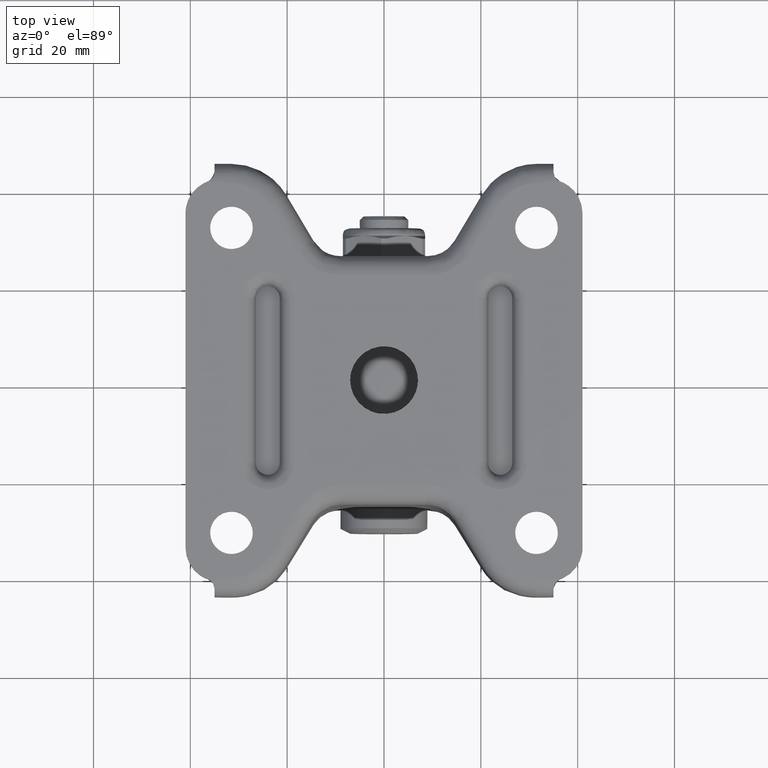
[diagram: clean part render]
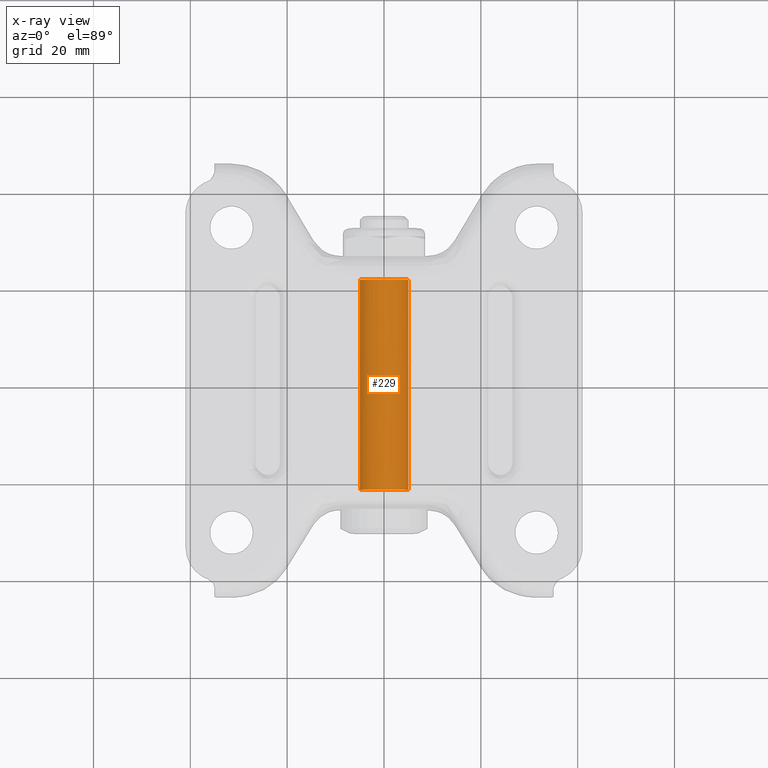
[diagram: x-ray — body ghosted, one internal face saturated and labeled with its STEP entity id]
A machine part, top view, then the same camera in x-ray: the body is ghosted and one INTERNAL B-rep face — a face not visible from any outside direction — is saturated and labeled: STEP entity #229.
In plain terms, the highlighted face is a freeform B-spline surface patch.
Its self-contained STEP definition (entity closure, byte-faithful):
#62=CARTESIAN_POINT('',(-4.961331069114298,21.699999999999999,-58.120640010506229));
#63=VERTEX_POINT('',#62);
#79=CARTESIAN_POINT('',(-4.961331069124835,-21.699999999999999,-58.120640010422001));
#80=VERTEX_POINT('',#79);
#81=CARTESIAN_POINT('',(-4.961331069114298,21.699999999999999,-58.120640010506229));
#82=CARTESIAN_POINT('',(-4.961331069124835,-21.699999999999999,-58.120640010422001));
#83=QUASI_UNIFORM_CURVE('',1,(#81,#82),.UNSPECIFIED.,.F.,.U.);
#84=EDGE_CURVE('',#63,#80,#83,.T.);
#101=CARTESIAN_POINT('',(4.999809615318933,-21.699999999999999,-57.456367322287797));
#102=VERTEX_POINT('',#101);
#118=CARTESIAN_POINT('',(4.999809615318741,21.699999999999999,-57.456367322265820));
#119=VERTEX_POINT('',#118);
#120=CARTESIAN_POINT('',(4.999809615318741,21.699999999999999,-57.456367322265820));
#121=CARTESIAN_POINT('',(4.999809615318933,-21.699999999999999,-57.456367322287797));
#122=QUASI_UNIFORM_CURVE('',1,(#120,#121),.UNSPECIFIED.,.F.,.U.);
#123=EDGE_CURVE('',#119,#102,#122,.T.);
#143=CARTESIAN_POINT('',(4.999809615320855,22.785000000000000,-57.456367322508129));
#144=CARTESIAN_POINT('',(4.956176937828985,22.785000000000007,-52.456557707187280));
#145=CARTESIAN_POINT('',(-0.043632677491869,22.785000000000000,-52.500190384679136));
#146=CARTESIAN_POINT('',(-5.043442292812725,22.785000000000007,-52.543823062171008));
#147=CARTESIAN_POINT('',(-4.999809615320855,22.785000000000000,-57.543632677491871));
#148=CARTESIAN_POINT('',(-4.997282156301378,22.785000000000000,-57.833250794790857));
#149=CARTESIAN_POINT('',(-4.961331069127693,22.785000000000004,-58.120640010399150));
#150=CARTESIAN_POINT('',(4.999809615320855,-22.812125000000002,-57.456367322508129));
#151=CARTESIAN_POINT('',(4.956176937828985,-22.812124999999998,-52.456557707187280));
#152=CARTESIAN_POINT('',(-0.043632677491869,-22.812125000000002,-52.500190384679136));
#153=CARTESIAN_POINT('',(-5.043442292812725,-22.812124999999998,-52.543823062171008));
#154=CARTESIAN_POINT('',(-4.999809615320855,-22.812125000000002,-57.543632677491871));
#155=CARTESIAN_POINT('',(-4.997282156301378,-22.812125000000005,-57.833250794790857));
#156=CARTESIAN_POINT('',(-4.961331069127693,-22.812125000000005,-58.120640010399150));
#164=(BOUNDED_SURFACE()B_SPLINE_SURFACE(2,1,((#143,#150),(#144,#151),(#145,#152),(#146,#153),(#147,#154),(#148,#155),(#149,#156)),.UNSPECIFIED.,.F.,.F.,.U.)B_SPLINE_SURFACE_WITH_KNOTS((3,2,2,3),(2,2),(0.0,8.284271247461902,16.568542494923800,17.231284194720761),(0.0,45.597125000000013),.UNSPECIFIED.)GEOMETRIC_REPRESENTATION_ITEM()RATIONAL_B_SPLINE_SURFACE(((1.0,1.0),(0.707106781186548,0.707106781186548),(1.0,1.0),(0.707106781186548,0.707106781186548),(1.0,1.0),(0.976568542494924,0.976568542494924),(0.956886118190660,0.956886118190660)))REPRESENTATION_ITEM('')SURFACE());
#165=CARTESIAN_POINT('',(0.0,21.699999999999999,-52.500000000000007));
#166=VERTEX_POINT('',#165);
#167=CARTESIAN_POINT('',(0.0,21.699999999999999,-52.500000000000007));
#168=CARTESIAN_POINT('',(-5.000000000000001,21.699999999999996,-52.500000000000007));
#169=CARTESIAN_POINT('',(-5.0,21.699999999999999,-57.500000000000000));
#170=CARTESIAN_POINT('',(-5.0,21.699999999999996,-57.811524637775811));
#171=CARTESIAN_POINT('',(-4.961331069114299,21.699999999999996,-58.120640010506229));
#179=(BOUNDED_CURVE()B_SPLINE_CURVE(2,(#167,#168,#169,#170,#171),.UNSPECIFIED.,.F.,.U.)B_SPLINE_CURVE_WITH_KNOTS((3,2,3),(0.500000000000000,0.750000000000000,0.771473928977981),.UNSPECIFIED.)CURVE()GEOMETRIC_REPRESENTATION_ITEM()RATIONAL_B_SPLINE_CURVE((1.0,0.707106781186548,1.0,0.974841727284271,0.954005430260591))REPRESENTATION_ITEM(''));
#180=EDGE_CURVE('',#166,#63,#179,.T.);
#181=ORIENTED_EDGE('',*,*,#180,.F.);
#182=CARTESIAN_POINT('',(4.999809615318741,21.699999999999999,-57.456367322265820));
#183=CARTESIAN_POINT('',(4.956556052494446,21.699999999999999,-52.500000000000007));
#184=CARTESIAN_POINT('',(0.0,21.699999999999999,-52.500000000000007));
#192=(BOUNDED_CURVE()B_SPLINE_CURVE(2,(#182,#183,#184),.UNSPECIFIED.,.F.,.U.)B_SPLINE_CURVE_WITH_KNOTS((3,3),(0.251539894352060,0.500000000000000),.UNSPECIFIED.)CURVE()GEOMETRIC_REPRESENTATION_ITEM()RATIONAL_B_SPLINE_CURVE((0.996414028060894,0.708910879640178,1.0))REPRESENTATION_ITEM(''));
#193=EDGE_CURVE('',#119,#166,#192,.T.);
#194=ORIENTED_EDGE('',*,*,#193,.F.);
#195=ORIENTED_EDGE('',*,*,#123,.T.);
#196=CARTESIAN_POINT('',(0.0,-21.699999999999999,-52.500000000000007));
#197=VERTEX_POINT('',#196);
#198=CARTESIAN_POINT('',(0.0,-21.699999999999999,-52.500000000000007));
#199=CARTESIAN_POINT('',(4.956556052538025,-21.700000000000003,-52.500000000000007));
#200=CARTESIAN_POINT('',(4.999809615318933,-21.699999999999992,-57.456367322287804));
#208=(BOUNDED_CURVE()B_SPLINE_CURVE(2,(#198,#199,#200),.UNSPECIFIED.,.F.,.U.)B_SPLINE_CURVE_WITH_KNOTS((3,3),(0.0,0.248460105649488),.UNSPECIFIED.)CURVE()GEOMETRIC_REPRESENTATION_ITEM()RATIONAL_B_SPLINE_CURVE((1.0,0.708910879638364,0.996414028064478))REPRESENTATION_ITEM(''));
#209=EDGE_CURVE('',#197,#102,#208,.T.);
#210=ORIENTED_EDGE('',*,*,#209,.F.);
#211=CARTESIAN_POINT('',(-4.961331069124835,-21.699999999999996,-58.120640010422008));
#212=CARTESIAN_POINT('',(-5.0,-21.699999999999996,-57.811524637690589));
#213=CARTESIAN_POINT('',(-5.0,-21.699999999999999,-57.500000000000000));
#214=CARTESIAN_POINT('',(-5.000000000000001,-21.699999999999996,-52.500000000000007));
#215=CARTESIAN_POINT('',(0.0,-21.699999999999999,-52.500000000000007));
#223=(BOUNDED_CURVE()B_SPLINE_CURVE(2,(#211,#212,#213,#214,#215),.UNSPECIFIED.,.F.,.U.)B_SPLINE_CURVE_WITH_KNOTS((3,2,3),(0.728526071027745,0.750000000000000,1.0),.UNSPECIFIED.)CURVE()GEOMETRIC_REPRESENTATION_ITEM()RATIONAL_B_SPLINE_CURVE((0.954005430271704,0.974841727290979,1.0,0.707106781186548,1.0))REPRESENTATION_ITEM(''));
#224=EDGE_CURVE('',#80,#197,#223,.T.);
#225=ORIENTED_EDGE('',*,*,#224,.F.);
#226=ORIENTED_EDGE('',*,*,#84,.F.);
#227=EDGE_LOOP('',(#181,#194,#195,#210,#225,#226));
#228=FACE_OUTER_BOUND('',#227,.T.);
#229=ADVANCED_FACE('',(#228),#164,.F.);